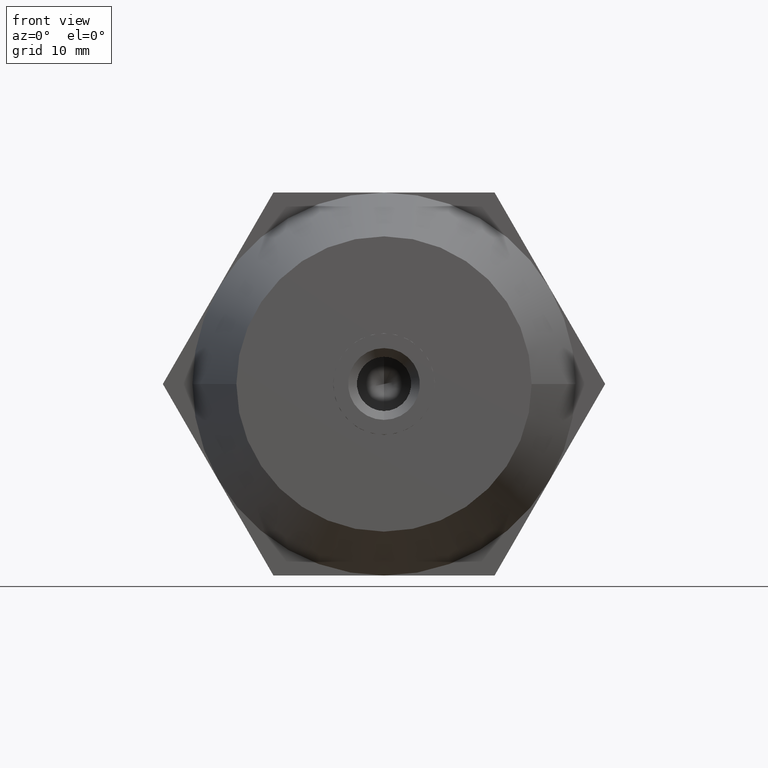
[diagram: clean part render]
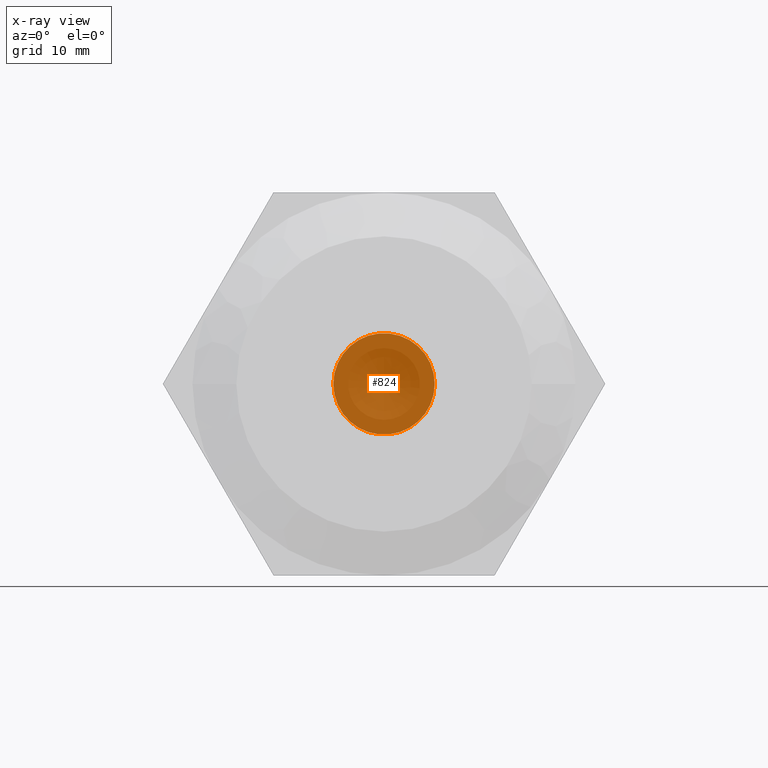
[diagram: x-ray — body ghosted, one internal face saturated and labeled with its STEP entity id]
A machine part, front view, then the same camera in x-ray: the body is ghosted and one INTERNAL B-rep face — a face not visible from any outside direction — is saturated and labeled: STEP entity #824.
In plain terms, the highlighted planar face has unit normal (0, 1, 0).
Its self-contained STEP definition (entity closure, byte-faithful):
#105 = DIRECTION ( 'NONE',  ( 0.0000000000000000000, 0.0000000000000000000, 1.000000000000000000 ) ) ;
#191 = ORIENTED_EDGE ( 'NONE', *, *, #1511, .F. ) ;
#220 = AXIS2_PLACEMENT_3D ( 'NONE', #1325, #1605, #3662 ) ;
#226 = ORIENTED_EDGE ( 'NONE', *, *, #1586, .F. ) ;
#261 = CARTESIAN_POINT ( 'NONE',  ( 3.174999999999955000, 13.50999999999922000, 5.499261314031209700 ) ) ;
#294 = AXIS2_PLACEMENT_3D ( 'NONE', #3410, #2833, #3127 ) ;
#297 = DIRECTION ( 'NONE',  ( 0.0000000000000000000, 0.0000000000000000000, 1.000000000000000000 ) ) ;
#391 = DIRECTION ( 'NONE',  ( -0.0000000000000000000, -1.000000000000000000, -0.0000000000000000000 ) ) ;
#711 = CARTESIAN_POINT ( 'NONE',  ( 0.0000000000000000000, 13.51000000000000000, 0.0000000000000000000 ) ) ;
#824 = ADVANCED_FACE ( 'NONE', ( #2433 ), #2157, .T. ) ;
#831 = CIRCLE ( 'NONE', #2582, 6.349999999999999600 ) ;
#887 = VERTEX_POINT ( 'NONE', #3394 ) ;
#940 = CARTESIAN_POINT ( 'NONE',  ( 3.175000000000045100, 13.50999999999922000, -5.499261314031159900 ) ) ;
#950 = ORIENTED_EDGE ( 'NONE', *, *, #3768, .F. ) ;
#979 = CARTESIAN_POINT ( 'NONE',  ( 6.349999999999999600, 13.51000000000000000, -1.734723475976804900E-015 ) ) ;
#1014 = EDGE_CURVE ( 'NONE', #887, #2885, #2806, .T. ) ;
#1027 = CIRCLE ( 'NONE', #2517, 6.349999999999999600 ) ;
#1312 = EDGE_LOOP ( 'NONE', ( #226, #950, #2790, #191, #2967, #3759 ) ) ;
#1325 = CARTESIAN_POINT ( 'NONE',  ( 0.0000000000000000000, 13.51000000000000000, 0.0000000000000000000 ) ) ;
#1365 = CARTESIAN_POINT ( 'NONE',  ( 0.0000000000000000000, 13.51000000000000000, 0.0000000000000000000 ) ) ;
#1372 = AXIS2_PLACEMENT_3D ( 'NONE', #711, #391, #3680 ) ;
#1511 = EDGE_CURVE ( 'NONE', #2885, #3564, #3254, .T. ) ;
#1586 = EDGE_CURVE ( 'NONE', #3242, #3379, #831, .T. ) ;
#1605 = DIRECTION ( 'NONE',  ( -0.0000000000000000000, -1.000000000000000000, -0.0000000000000000000 ) ) ;
#1632 = AXIS2_PLACEMENT_3D ( 'NONE', #1887, #3619, #105 ) ;
#1753 = CARTESIAN_POINT ( 'NONE',  ( 0.0000000000000000000, 13.51000000000000000, 0.0000000000000000000 ) ) ;
#1887 = CARTESIAN_POINT ( 'NONE',  ( 0.0000000000000000000, 13.51000000000000000, 0.0000000000000000000 ) ) ;
#1946 = DIRECTION ( 'NONE',  ( -0.0000000000000000000, -1.000000000000000000, -0.0000000000000000000 ) ) ;
#1949 = DIRECTION ( 'NONE',  ( 0.0000000000000000000, 0.0000000000000000000, 1.000000000000000000 ) ) ;
#2053 = DIRECTION ( 'NONE',  ( -0.0000000000000000000, -1.000000000000000000, -0.0000000000000000000 ) ) ;
#2093 = CIRCLE ( 'NONE', #294, 6.349999999999999600 ) ;
#2110 = VERTEX_POINT ( 'NONE', #979 ) ;
#2157 = PLANE ( 'NONE',  #1632 ) ;
#2277 = DIRECTION ( 'NONE',  ( -0.0000000000000000000, -1.000000000000000000, -0.0000000000000000000 ) ) ;
#2404 = CARTESIAN_POINT ( 'NONE',  ( -3.174999999999950100, 13.50999999999922000, -5.499261314031209700 ) ) ;
#2433 = FACE_OUTER_BOUND ( 'NONE', #1312, .T. ) ;
#2517 = AXIS2_PLACEMENT_3D ( 'NONE', #3415, #1946, #3714 ) ;
#2582 = AXIS2_PLACEMENT_3D ( 'NONE', #1753, #2053, #297 ) ;
#2613 = CARTESIAN_POINT ( 'NONE',  ( -3.174999999999999800, 13.51000000000000000, 5.499261314031190100 ) ) ;
#2622 = CIRCLE ( 'NONE', #1372, 6.349999999999999600 ) ;
#2725 = EDGE_CURVE ( 'NONE', #3564, #2110, #2622, .T. ) ;
#2790 = ORIENTED_EDGE ( 'NONE', *, *, #2725, .F. ) ;
#2806 = CIRCLE ( 'NONE', #3020, 6.349999999999999600 ) ;
#2833 = DIRECTION ( 'NONE',  ( -0.0000000000000000000, -1.000000000000000000, -0.0000000000000000000 ) ) ;
#2885 = VERTEX_POINT ( 'NONE', #2404 ) ;
#2967 = ORIENTED_EDGE ( 'NONE', *, *, #1014, .F. ) ;
#3020 = AXIS2_PLACEMENT_3D ( 'NONE', #1365, #2277, #1949 ) ;
#3083 = EDGE_CURVE ( 'NONE', #3379, #887, #2093, .T. ) ;
#3127 = DIRECTION ( 'NONE',  ( 0.0000000000000000000, 0.0000000000000000000, 1.000000000000000000 ) ) ;
#3242 = VERTEX_POINT ( 'NONE', #261 ) ;
#3254 = CIRCLE ( 'NONE', #220, 6.349999999999999600 ) ;
#3379 = VERTEX_POINT ( 'NONE', #2613 ) ;
#3394 = CARTESIAN_POINT ( 'NONE',  ( -6.349999999999999600, 13.51000000000000000, 1.734723475976804900E-015 ) ) ;
#3410 = CARTESIAN_POINT ( 'NONE',  ( 0.0000000000000000000, 13.51000000000000000, 0.0000000000000000000 ) ) ;
#3415 = CARTESIAN_POINT ( 'NONE',  ( 0.0000000000000000000, 13.51000000000000000, 0.0000000000000000000 ) ) ;
#3564 = VERTEX_POINT ( 'NONE', #940 ) ;
#3619 = DIRECTION ( 'NONE',  ( 0.0000000000000000000, 1.000000000000000000, 0.0000000000000000000 ) ) ;
#3662 = DIRECTION ( 'NONE',  ( 1.776356839400250500E-015, 0.0000000000000000000, 1.000000000000000000 ) ) ;
#3680 = DIRECTION ( 'NONE',  ( -1.776356839400250500E-015, 0.0000000000000000000, 1.000000000000000000 ) ) ;
#3714 = DIRECTION ( 'NONE',  ( 5.329070518200750600E-015, 0.0000000000000000000, 1.000000000000000000 ) ) ;
#3759 = ORIENTED_EDGE ( 'NONE', *, *, #3083, .F. ) ;
#3768 = EDGE_CURVE ( 'NONE', #2110, #3242, #1027, .T. ) ;